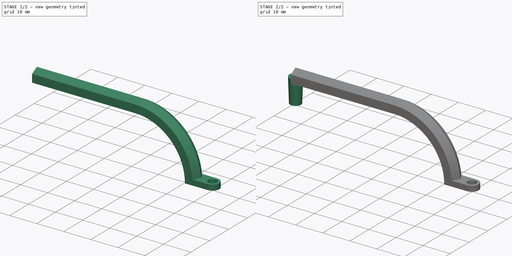
[diagram: build sequence overview — one tinted view per stage of 2, left to right]
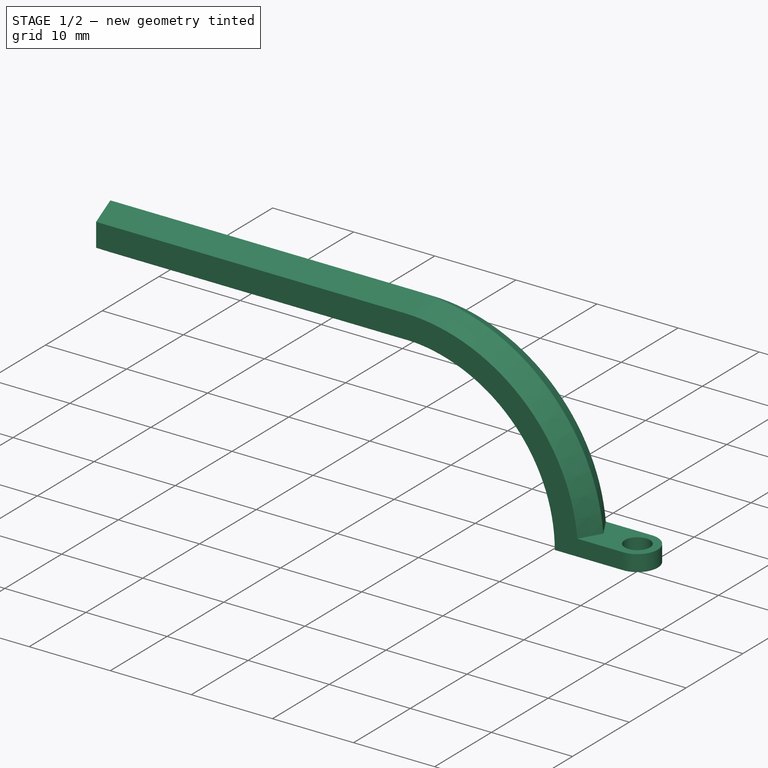
[diagram: stage 1 of 2 — iso view after this stage's code; geometry added in this stage tinted green]
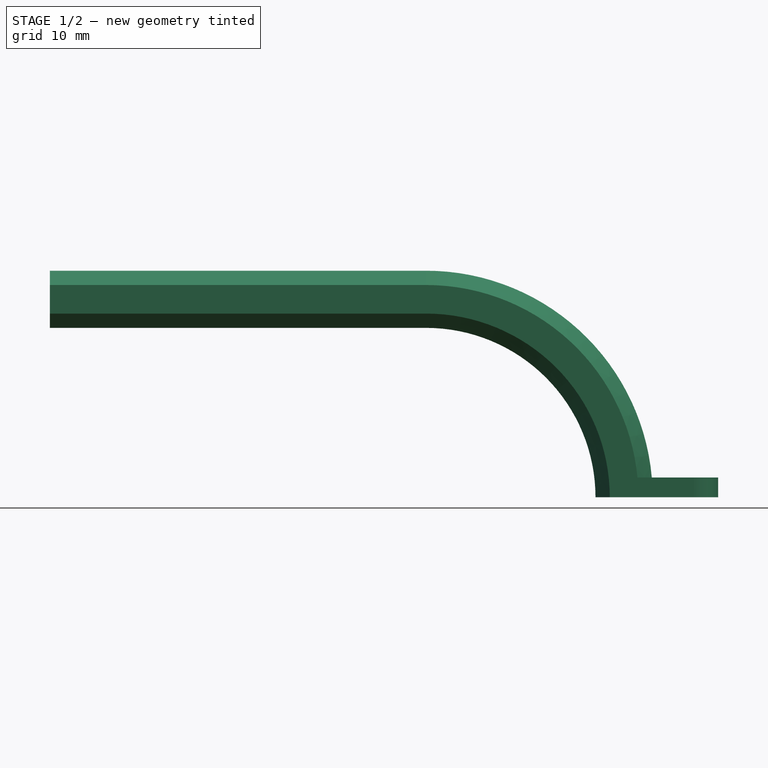
[diagram: stage 1 of 2 — front view after this stage's code; geometry added in this stage tinted green]
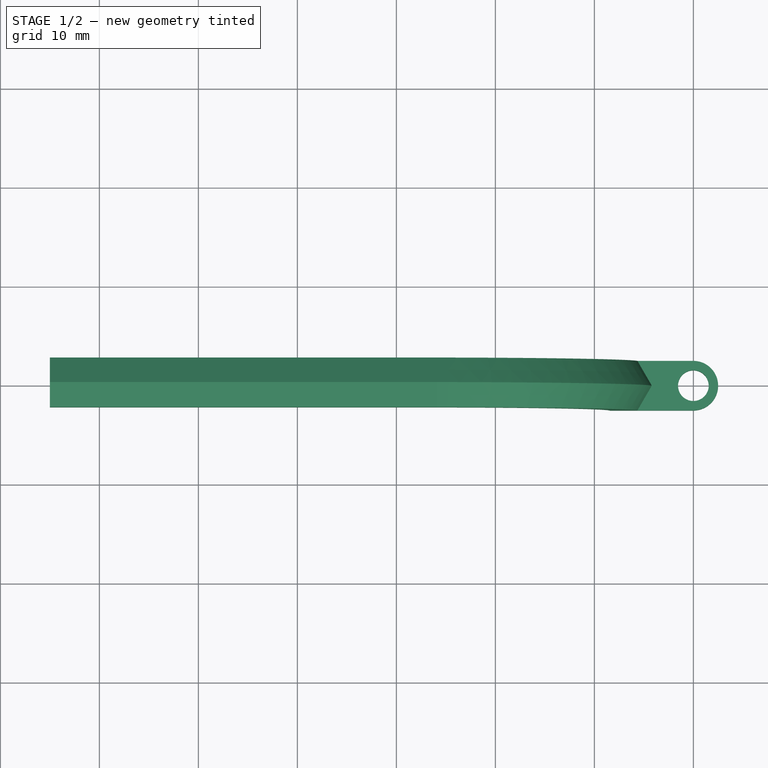
[diagram: stage 1 of 2 — top view after this stage's code; geometry added in this stage tinted green]
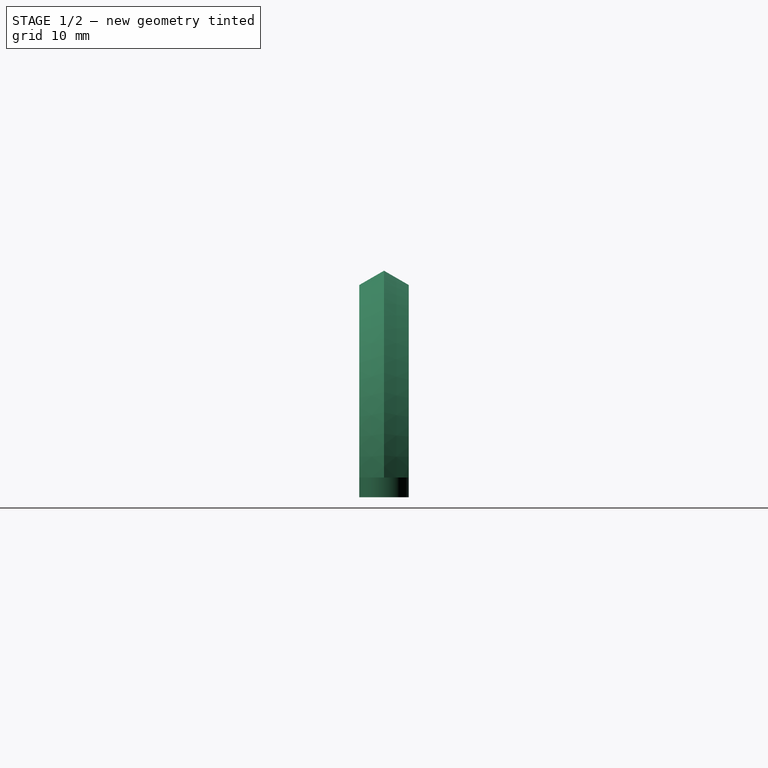
[diagram: stage 1 of 2 — right view after this stage's code; geometry added in this stage tinted green]
FCSTD DOCUMENT  (FreeCAD 0.19R24344 (Git))
Label: MicroManipulator_Arm_Arena
Comment: Arm for the MicroManipulator. The friction mount point for the Luer lock item is straight down. This works, but for most experiments we used the tilted version.\n
License: Creative Commons Attribution-NonCommercial-ShareAlike
LicenseURL: http://creativecommons.org/licenses/by-nc-sa/4.0/
objects: Sketcher::SketchObject×4, PartDesign::Pad×1, PartDesign::AdditivePipe×1, PartDesign::Revolution×1, PartDesign::CoordinateSystem×1, PartDesign::Body×1
note: 12 computed .brp shape members not serialized (recipe doc carries the construction recipe); baked Part::Feature solids carry a one-line shape summary decoded from their .brp

FEATURE [Sketcher::SketchObject] Sketch
  FullyConstrained = true
  MapMode = 5
  Support = -> [XY_Plane]
  sketch-geometry (5):
    g0: Circle CenterX=0 CenterY=0 CenterZ=0 NormalX=0 NormalY=0 NormalZ=1 AngleXU=0 Radius=1.55
    g1: LineSegment StartX=1.23043e-11 StartY=2.5 StartZ=0 EndX=-7 EndY=2.5 EndZ=0
    g2: LineSegment StartX=-7 StartY=2.5 StartZ=0 EndX=-7 EndY=-2.5 EndZ=0
    g3: LineSegment StartX=1.23043e-11 StartY=-2.5 StartZ=0 EndX=-7 EndY=-2.5 EndZ=0
    g4: ArcOfCircle CenterX=0 CenterY=0 CenterZ=0 NormalX=0 NormalY=0 NormalZ=1 AngleXU=0 Radius=2.5 StartAngle=4.71239 EndAngle=7.85398
  constraints (14):
    c: Diameter(g0) = 3.1
    c: Horizontal(g1)
    c: Coincident(g2,g1)
    c: Vertical(g2)
    c: Coincident(g3,g2)
    c: Horizontal(g3)
    c: Coincident(g4,g1)
    c: Coincident(g4,g3)
    c: Angle(g4) = 3.14159
    c: Distance(g3,g1) = 5
    c: Vertical(g3,g1)
    c: Coincident(g4,g0)
    c: Coincident(g0,g-1)
    c: Distance(g3) = 7
FEATURE [PartDesign::Pad] Pad
  Direction = (1,1,1)
  Length = 2
  Length2 = 100
  Profile = -> Sketch
  Type = 0
FEATURE [Sketcher::SketchObject] Sketch001
  ExternalGeometry = -> [Pad]
  FullyConstrained = true
  MapMode = 5
  Placement = pos=(0,0,0) rot=(1,0,0;1.5708rad)
  Support = -> [XZ_Plane]
  sketch-geometry (2):
    g0: ArcOfCircle CenterX=-27 CenterY=2.8025e-12 CenterZ=0 NormalX=0 NormalY=0 NormalZ=1 AngleXU=0 Radius=20 StartAngle=-1.33e-14 EndAngle=1.5708
    g1: LineSegment StartX=-27 StartY=20 StartZ=0 EndX=-65 EndY=20 EndZ=0
  constraints (6):
    c: Coincident(g0,g-3)
    c: Horizontal(g1)
    c: DistanceX(g1,g-1) = 65
    c: DistanceY(g-1,g1) = 20
    c: Tangent(g1,g0) = -1.5708
    c: Angle(g0) = 1.5708
FEATURE [Sketcher::SketchObject] Sketch002
  ExternalGeometry = -> [Sketch001]
  FullyConstrained = true
  MapMode = 5
  Support = -> [XY_Plane]
  sketch-geometry (7):
    g0: LineSegment StartX=-8.44338 StartY=-2.5 StartZ=0 EndX=-5.55662 EndY=-2.5 EndZ=0
    g1: LineSegment StartX=-5.55662 StartY=-2.5 StartZ=0 EndX=-4.11325 EndY=-1.24e-14 EndZ=0
    g2: LineSegment StartX=-4.11325 StartY=-1.24e-14 StartZ=0 EndX=-5.55662 EndY=2.5 EndZ=0
    g3: LineSegment StartX=-5.55662 StartY=2.5 StartZ=0 EndX=-8.44338 EndY=2.5 EndZ=0
    g4: LineSegment StartX=-8.44338 StartY=2.5 StartZ=0 EndX=-9.88675 EndY=-1.3e-15 EndZ=0
    g5: LineSegment StartX=-9.88675 StartY=-1.3e-15 StartZ=0 EndX=-8.44338 EndY=-2.5 EndZ=0
    g6: Circle CenterX=-7 CenterY=0 CenterZ=0 NormalX=0 NormalY=0 NormalZ=1 AngleXU=0 Radius=2.88675
  constraints (16):
    c: Coincident(g0,g1)
    c: Coincident(g1,g2)
    c: Coincident(g2,g3)
    c: Coincident(g3,g4)
    c: Coincident(g4,g5)
    c: Coincident(g5,g0)
    c: Equal(g0, g1-g5) x5
    c: PointOnObject(g0,g6)
    c: PointOnObject(g1,g6)
    c: PointOnObject(g2,g6)
    c: PointOnObject(g3,g6)
    c: PointOnObject(g4,g6)
    c: PointOnObject(g5,g6)
    c: Coincident(g6,g-3)
    c: DistanceY(g0,g3) = 5
    c: Horizontal(g0)
FEATURE [PartDesign::AdditivePipe] AdditivePipe
  AuxilleryCurvelinear = true
  AuxillerySpineTangent = false
  BaseFeature = -> Pad
  Binormal = (0,0,0)
  Mode = 0
  Profile = -> Sketch002
  Spine = -> Sketch001
  SpineTangent = false
  Transformation = 0
  Transition = 0
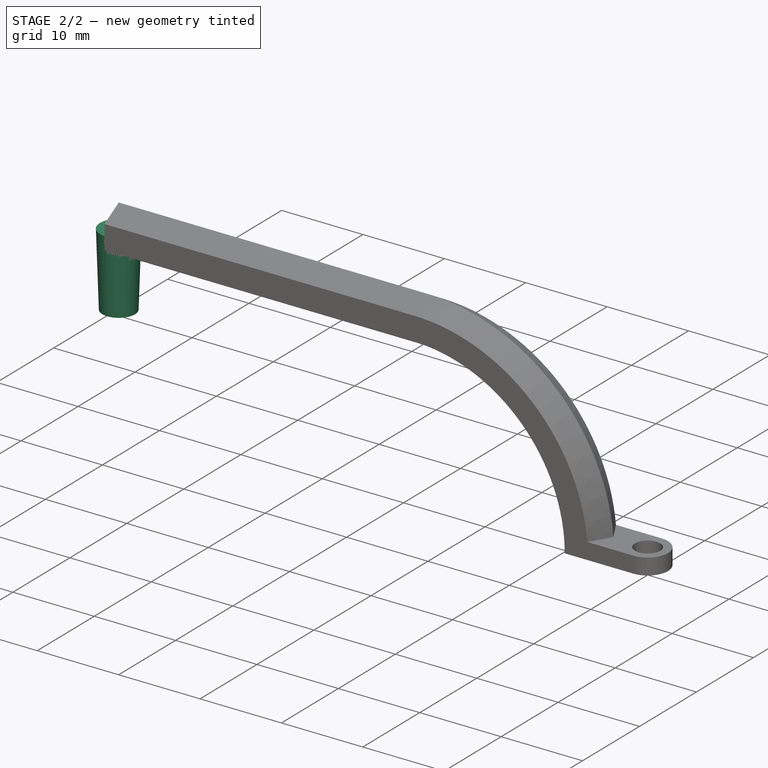
[diagram: stage 2 of 2 — iso view after this stage's code; geometry added in this stage tinted green]
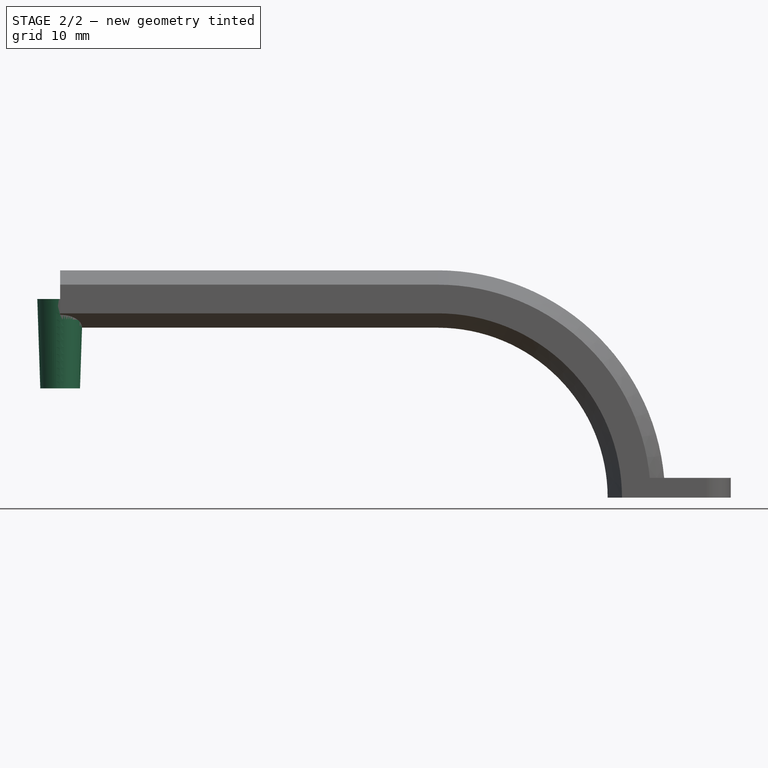
[diagram: stage 2 of 2 — front view after this stage's code; geometry added in this stage tinted green]
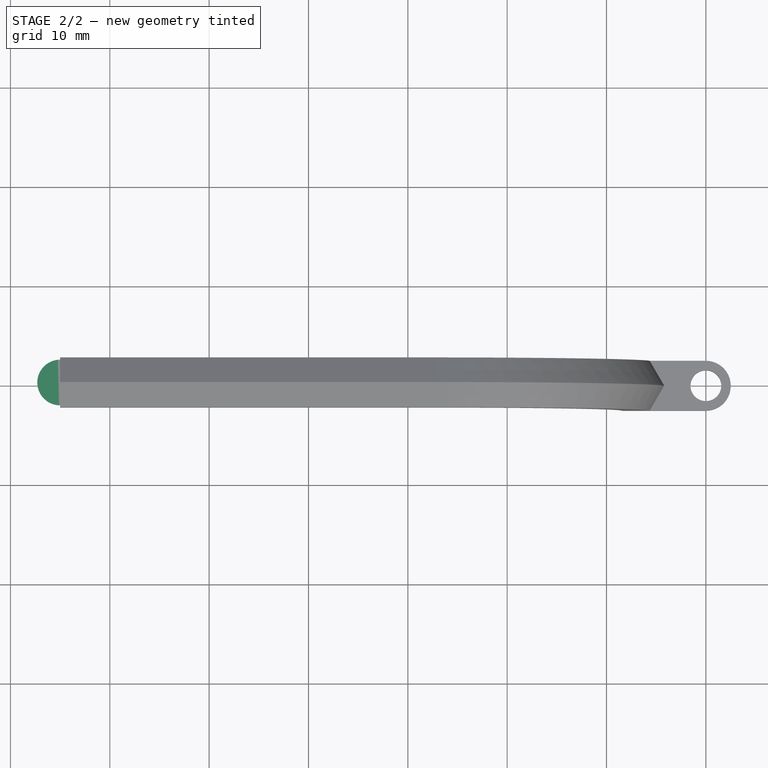
[diagram: stage 2 of 2 — top view after this stage's code; geometry added in this stage tinted green]
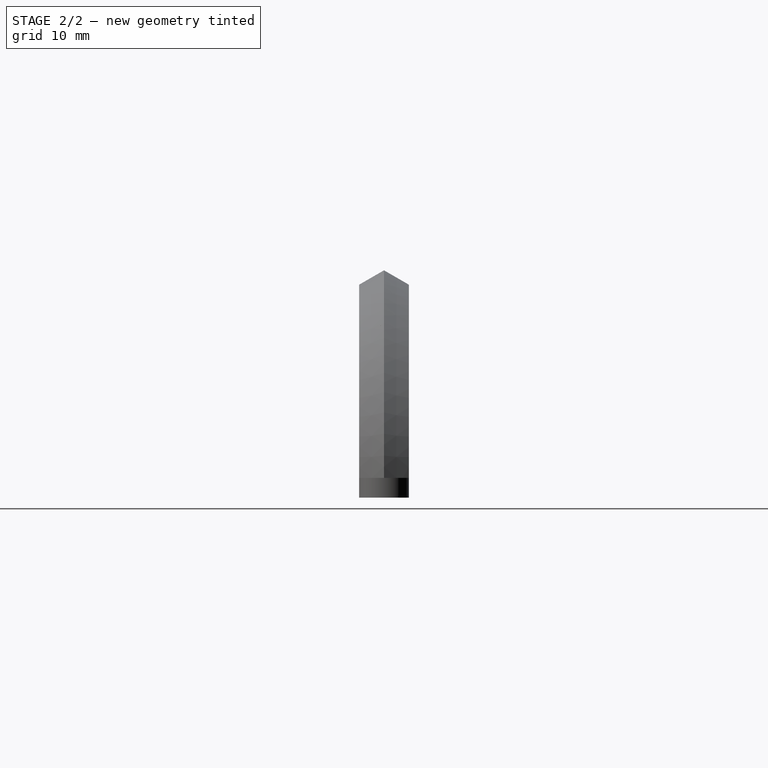
[diagram: stage 2 of 2 — right view after this stage's code; geometry added in this stage tinted green]
FEATURE [Sketcher::SketchObject] Sketch003
  ExternalGeometry = -> [Sketch001]
  FullyConstrained = true
  MapMode = 5
  Placement = pos=(-65,0,-8.534e-13) rot=(0.57735,-0.57735,-0.57735;2.0944rad)
  Support = -> [AdditivePipe]
  sketch-geometry (4):
    g0: LineSegment StartX=-2.2e-15 StartY=20 StartZ=0 EndX=0 EndY=11 EndZ=0
    g1: LineSegment StartX=-2.2e-15 StartY=20 StartZ=0 EndX=2.3 EndY=20 EndZ=0
    g2: LineSegment StartX=2.3 StartY=20 StartZ=0 EndX=2 EndY=11 EndZ=0
    g3: LineSegment StartX=2 StartY=11 StartZ=0 EndX=0 EndY=11 EndZ=0
  constraints (11):
    c: PointOnObject(g0,g-2)
    c: Coincident(g1,g0)
    c: Horizontal(g1)
    c: Coincident(g2,g1)
    c: Coincident(g3,g2)
    c: Coincident(g3,g0)
    c: Horizontal(g3)
    c: Distance(g0) = 9
    c: Distance(g3) = 2
    c: Distance(g1) = 2.3
    c: Coincident(g0,g-3)
FEATURE [PartDesign::Revolution] Revolution
  Angle = 360
  Axis = (-1.3e-14,1e-16,1)
  Base = (-65,0,-8.533e-13)
  BaseFeature = -> AdditivePipe
  Profile = -> Sketch003
  ReferenceAxis = -> Sketch003 [V_Axis]
  Reversed = true
FEATURE [PartDesign::CoordinateSystem] LCS_Hinge
  AttacherType = Attacher::AttachEngine3D
  MapMode = 11
  Placement = pos=(0,0,0) rot=(0,0,1;1.5708rad)
  Support = -> [Revolution]
FEATURE [PartDesign::Body] Body  label="Arm_Arena"
  Group = -> [Sketch,Pad,Sketch001,Sketch002,AdditivePipe,Sketch003,Revolution,LCS_Hinge]
  Origin = -> Origin
  Tip = -> Revolution
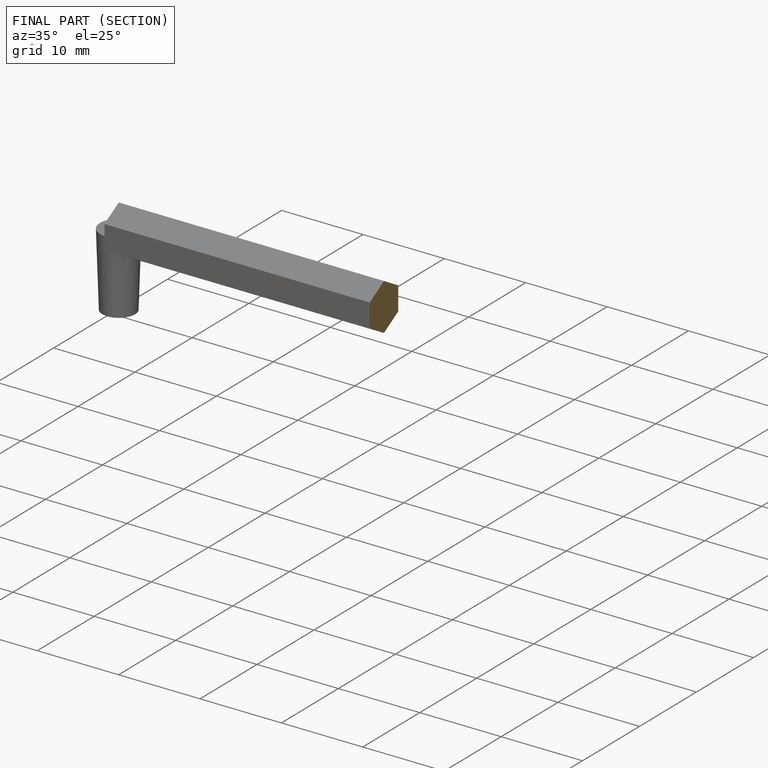
[diagram: finished part — half-section view (interior)]
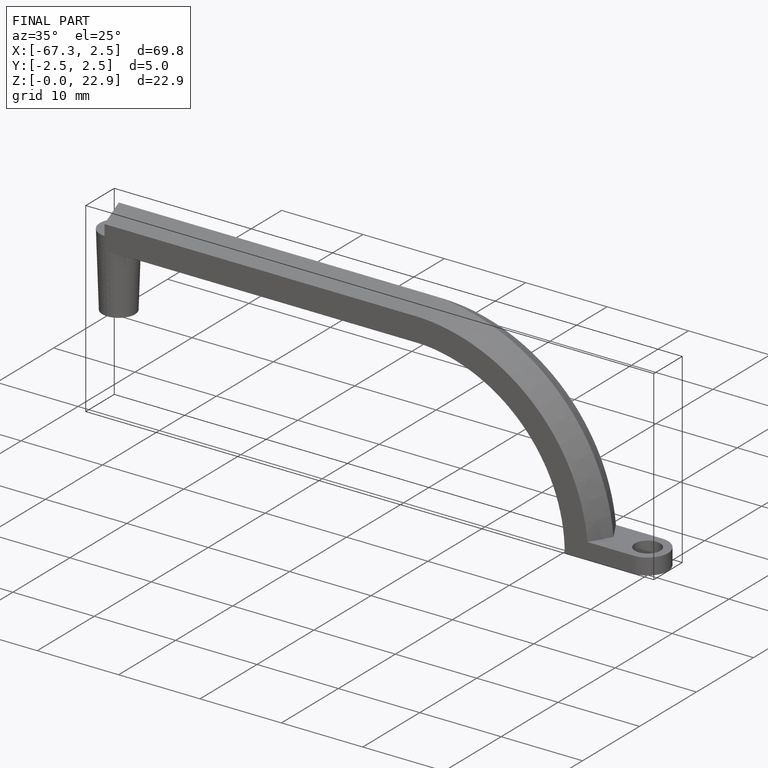
[diagram: finished part — iso view with bounding-box wireframe]
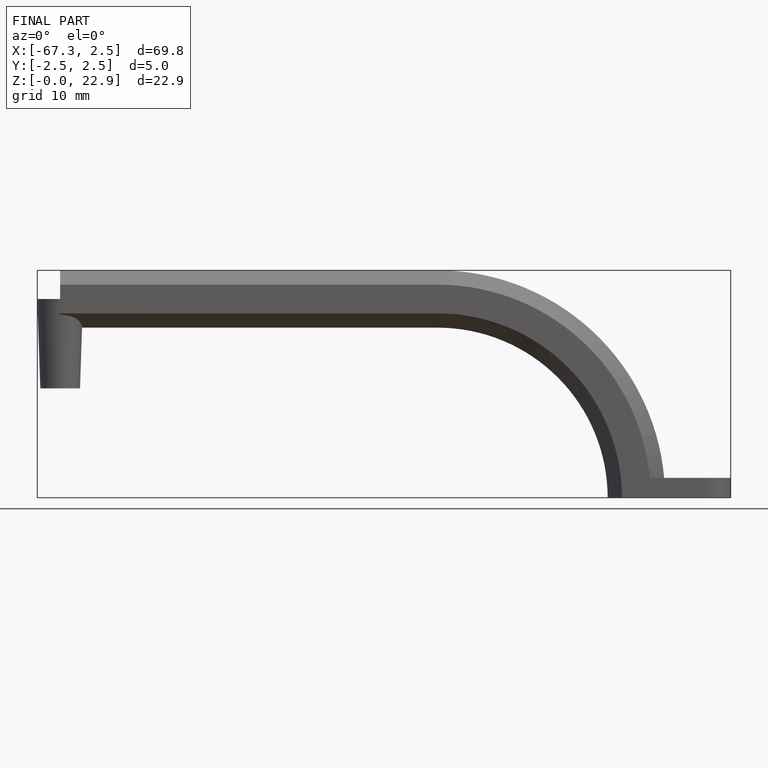
[diagram: finished part — front view with bounding-box wireframe]
